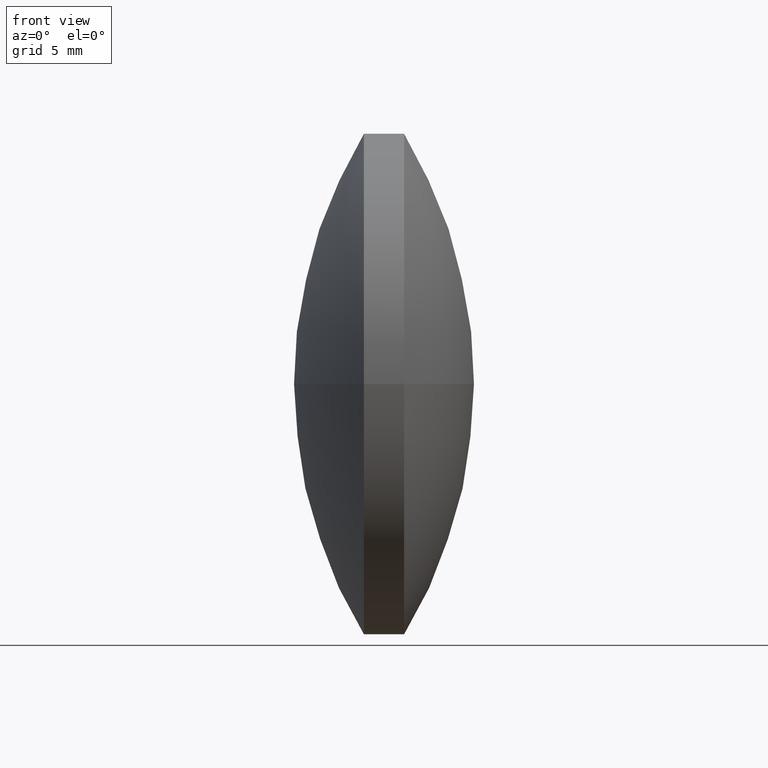
[diagram: clean part render]
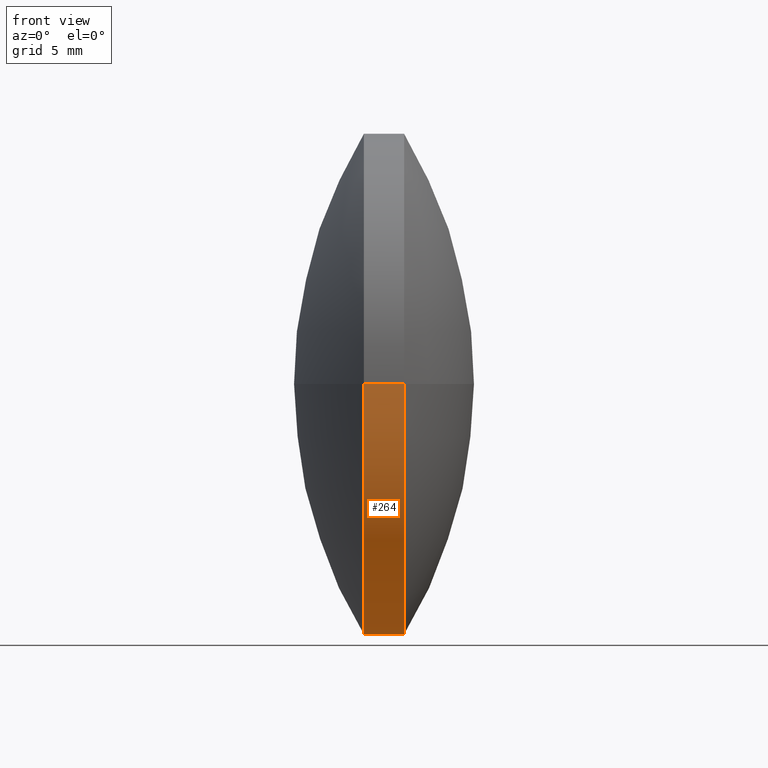
[diagram: same view with one face highlighted and labeled with its STEP entity id]
A machine part, front view. The second image highlights one B-rep face of the part: STEP entity #264.
In plain terms, the highlighted cylindrical surface (partial cylindrical patch) has radius 12.5 mm, axis along (-1, 0, -0).
Its self-contained STEP definition (entity closure, byte-faithful):
#12 = VERTEX_POINT ( 'NONE', #242 ) ;
#14 = DIRECTION ( 'NONE',  ( -1.000000000000000000, 1.426066712043499300E-015, -0.0000000000000000000 ) ) ;
#22 = VERTEX_POINT ( 'NONE', #286 ) ;
#27 = VECTOR ( 'NONE', #79, 1000.000000000000000 ) ;
#30 = EDGE_CURVE ( 'NONE', #12, #98, #92, .T. ) ;
#37 = VERTEX_POINT ( 'NONE', #145 ) ;
#38 = DIRECTION ( 'NONE',  ( -1.110223024625159300E-015, -1.000000000000000000, 0.0000000000000000000 ) ) ;
#58 = CARTESIAN_POINT ( 'NONE',  ( 76.62621286149057200, 47.85050494407931900, 0.0000000000000000000 ) ) ;
#68 = DIRECTION ( 'NONE',  ( -1.000000000000000000, 1.426066712043499300E-015, -0.0000000000000000000 ) ) ;
#75 = EDGE_LOOP ( 'NONE', ( #181, #143, #208, #130 ) ) ;
#79 = DIRECTION ( 'NONE',  ( -1.000000000000000000, 1.426066712043499300E-015, -0.0000000000000000000 ) ) ;
#81 = CARTESIAN_POINT ( 'NONE',  ( 84.09664741600607800, 35.35050494407936100, -1.530808498934187000E-015 ) ) ;
#87 = EDGE_CURVE ( 'NONE', #22, #37, #211, .T. ) ;
#92 = LINE ( 'NONE', #124, #27 ) ;
#98 = VERTEX_POINT ( 'NONE', #81 ) ;
#101 = CARTESIAN_POINT ( 'NONE',  ( 76.62621286149058600, 60.35050494407928300, 1.530808498934187800E-015 ) ) ;
#124 = CARTESIAN_POINT ( 'NONE',  ( 76.62621286149055800, 35.35050494407934700, 0.0000000000000000000 ) ) ;
#127 = EDGE_CURVE ( 'NONE', #22, #12, #202, .T. ) ;
#130 = ORIENTED_EDGE ( 'NONE', *, *, #206, .F. ) ;
#143 = ORIENTED_EDGE ( 'NONE', *, *, #127, .T. ) ;
#144 = AXIS2_PLACEMENT_3D ( 'NONE', #158, #250, #200 ) ;
#145 = CARTESIAN_POINT ( 'NONE',  ( 84.09664741600610700, 60.35050494407926900, 0.0000000000000000000 ) ) ;
#148 = DIRECTION ( 'NONE',  ( -1.000000000000000000, 1.426066712043499300E-015, -0.0000000000000000000 ) ) ;
#149 = FACE_OUTER_BOUND ( 'NONE', #75, .T. ) ;
#158 = CARTESIAN_POINT ( 'NONE',  ( 86.09664741600609300, 47.85050494407930400, 0.0000000000000000000 ) ) ;
#171 = CYLINDRICAL_SURFACE ( 'NONE', #176, 12.49999999999997000 ) ;
#176 = AXIS2_PLACEMENT_3D ( 'NONE', #58, #68, #234 ) ;
#181 = ORIENTED_EDGE ( 'NONE', *, *, #87, .F. ) ;
#200 = DIRECTION ( 'NONE',  ( -1.110223024625159300E-015, -1.000000000000000000, 0.0000000000000000000 ) ) ;
#202 = CIRCLE ( 'NONE', #144, 12.49999999999997000 ) ;
#206 = EDGE_CURVE ( 'NONE', #37, #98, #302, .T. ) ;
#208 = ORIENTED_EDGE ( 'NONE', *, *, #30, .T. ) ;
#211 = LINE ( 'NONE', #101, #266 ) ;
#230 = AXIS2_PLACEMENT_3D ( 'NONE', #291, #14, #38 ) ;
#234 = DIRECTION ( 'NONE',  ( -1.110223024625159300E-015, -1.000000000000000000, 0.0000000000000000000 ) ) ;
#242 = CARTESIAN_POINT ( 'NONE',  ( 86.09664741600606400, 35.35050494407931900, -1.530808498934187200E-015 ) ) ;
#250 = DIRECTION ( 'NONE',  ( -1.000000000000000000, 1.426066712043499300E-015, -0.0000000000000000000 ) ) ;
#264 = ADVANCED_FACE ( 'NONE', ( #149 ), #171, .T. ) ;
#266 = VECTOR ( 'NONE', #148, 1000.000000000000000 ) ;
#286 = CARTESIAN_POINT ( 'NONE',  ( 86.09664741600610700, 60.35050494407926900, 0.0000000000000000000 ) ) ;
#291 = CARTESIAN_POINT ( 'NONE',  ( 84.09664741600609300, 47.85050494407930400, 0.0000000000000000000 ) ) ;
#302 = CIRCLE ( 'NONE', #230, 12.49999999999997000 ) ;